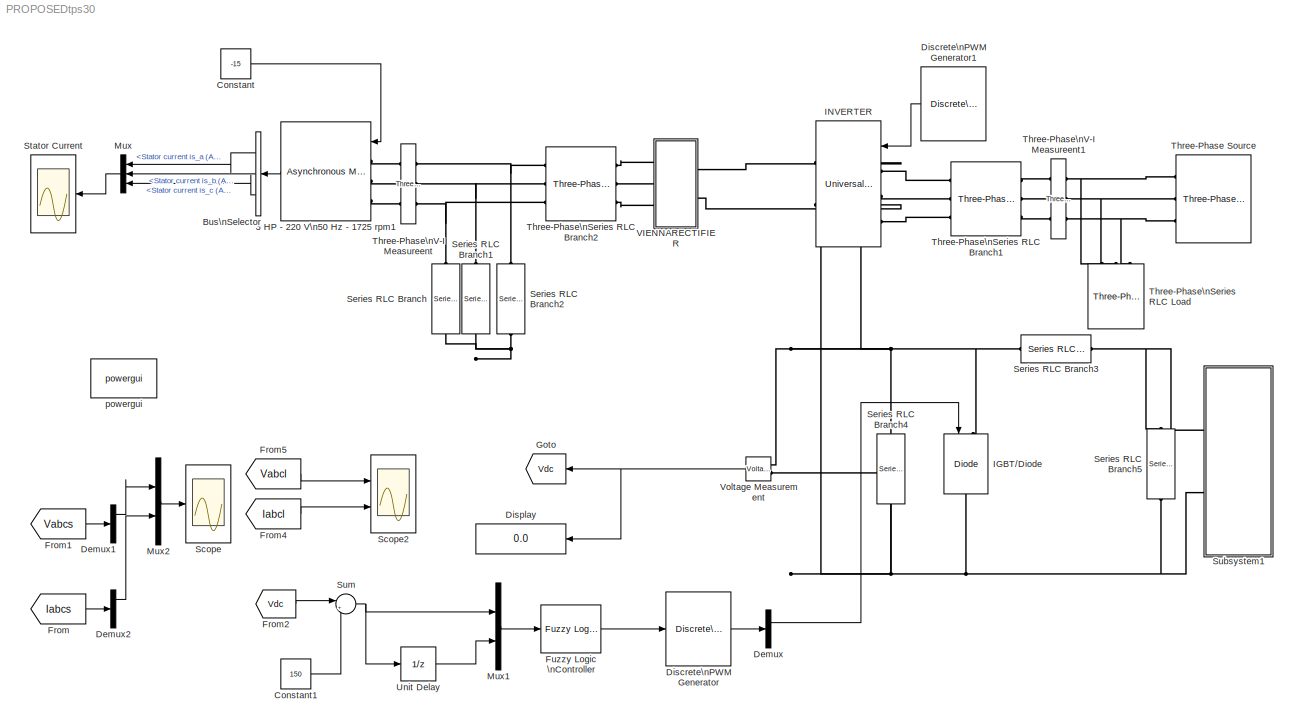
MODEL PROPOSEDtps30
KIND model
BLOCK [Reference] 3 HP - 220 V\n50 Hz - 1725 rpm1  REF=powerlib/Machines/Asynchronous Machine\nSI Units
  AttributesFormatString = \\n
  Cage1 = [ 0.022 0.226/377]
  Cage2 = [ 0.022 0.226/377]
  FunctionWithSeparateData = off
  GeneratePreprocessorConditionals = off
  InitialConditions = [ 1,0   0,0,0   0,0,0 ]
  IterativeModel = Forward Euler
  Lm = 69.31e-3
  LoadFlowParameters = 0
  Mechanical = [ 0.089 0 2 ]
  MechanicalLoad = Torque Tm
  NominalParameters = [ 10*746, 230, 50 ]
  Pmec = 0
  PolePairs = 2
  Ports = [1, 1, 0, 0, 0, 3]
  PresetModel = No
  RTWMemSecDataConstants = Inherit from model
  RTWMemSecDataInternal = Inherit from model
  RTWMemSecDataParameters = Inherit from model
  RTWMemSecFuncExecute = Inherit from model
  RTWMemSecFuncInitTerm = Inherit from model
  ReferenceFrame = Stationary
  Rotor = [ 0.816  2.0e-3 ]
  RotorType = Squirrel-cage
  SID = 227
  Saturation = [14.03593122, 27.81365428, 53.79336849, 72.68890987, 97.98006896, 148.6815601, 215.7428561, 302.9841135, 428.7778367 ; 230, 322, 414, 460, 506, 552, 598, 644, 690]
  ShowDetailedParameters = on
  ShowPortLabels = FromPortIcon
  SimulateSaturation = off
  SourceBlock = powerlib/Machines/Asynchronous Machine\nSI Units
  SourceType = Asynchronous Machine
  Stator = [ 0.435  2*2.0e-3 ]
  SystemSampleTime = -1
  TsBlock = -1
  TsPowergui = 0
  Units = SI
BLOCK [BusSelector] Bus\nSelector
  OutputSignals = Stator measurements.Stator current is_a (A),Stator measurements.Stator current is_b (A),Stator measurements.Stator current is_c (A)
  Ports = [1, 3]
  SID = 2
BLOCK [Constant] Constant
  SID = 229
  Value = -15
BLOCK [Constant] Constant1
  SID = 439
  Value = 150
BLOCK [Demux] Demux
  DisplayOption = bar
  Outputs = 2
  Ports = [1, 2]
  SID = 446
BLOCK [Demux] Demux1
  DisplayOption = bar
  Outputs = 3
  Ports = [1, 3]
  SID = 471
BLOCK [Demux] Demux2
  DisplayOption = bar
  Outputs = 3
  Ports = [1, 3]
  SID = 472
BLOCK [Reference] Discrete\nPWM Generator  REF=powerlib_extras/Discrete \nControl Blocks/Discrete\nPWM Generator
  Fc = 1080
  Freq = 60
  FunctionWithSeparateData = off
  GeneratePreprocessorConditionals = off
  GeneratorMode = 1-arm  bridge (2 pulses)
  Internal = off
  Phase = 0
  Ports = [1, 1]
  RTWMemSecDataConstants = Inherit from model
  RTWMemSecDataInternal = Inherit from model
  RTWMemSecDataParameters = Inherit from model
  RTWMemSecFuncExecute = Inherit from model
  RTWMemSecFuncInitTerm = Inherit from model
  SID = 445
  ShowPortLabels = FromPortIcon
  SourceBlock = powerlib_extras/Discrete \nControl Blocks/Discrete\nPWM Generator
  SourceType = Discrete PWM Generator
  SystemSampleTime = -1
  Ts = 5e-6
  mIndex = 0.4
BLOCK [Reference] Discrete\nPWM Generator1  REF=powerlib_extras/Discrete \nControl Blocks/Discrete\nPWM Generator
  Fc = 1080
  Freq = 60
  FunctionWithSeparateData = off
  GeneratePreprocessorConditionals = off
  GeneratorMode = 3-arm  bridge (6 pulses)
  Internal = on
  Phase = 0
  Ports = [0, 1]
  RTWMemSecDataConstants = Inherit from model
  RTWMemSecDataInternal = Inherit from model
  RTWMemSecDataParameters = Inherit from model
  RTWMemSecFuncExecute = Inherit from model
  RTWMemSecFuncInitTerm = Inherit from model
  SID = 473
  ShowPortLabels = FromPortIcon
  SourceBlock = powerlib_extras/Discrete \nControl Blocks/Discrete\nPWM Generator
  SourceType = Discrete PWM Generator
  SystemSampleTime = -1
  Ts = 5e-6
  mIndex = 0.4
BLOCK [Display] Display
  Decimation = 1
  Lockdown = off
  Ports = [1]
  SID = 454
BLOCK [From] From
  GotoTag = Iabcs
  SID = 38
  TagVisibility = global
BLOCK [From] From1
  GotoTag = Vabcs
  SID = 39
  TagVisibility = global
BLOCK [From] From2
  GotoTag = Vdc
  SID = 437
BLOCK [From] From4
  GotoTag = Iabcl
  SID = 59
  TagVisibility = global
BLOCK [From] From5
  GotoTag = Vabcl
  SID = 60
  TagVisibility = global
BLOCK [Reference] Fuzzy Logic \nController  REF=fuzblock/Fuzzy Logic \nController  (lib defined in mdl_858b3b3e7478)
  FunctionWithSeparateData = off
  GeneratePreprocessorConditionals = off
  Ports = [1, 1]
  RTWMemSecDataConstants = Inherit from model
  RTWMemSecDataInternal = Inherit from model
  RTWMemSecDataParameters = Inherit from model
  RTWMemSecFuncExecute = Inherit from model
  RTWMemSecFuncInitTerm = Inherit from model
  SID = 440
  ShowPortLabels = FromPortIcon
  SourceBlock = fuzblock/Fuzzy Logic \nController
  SourceType = FIS
  SystemSampleTime = -1
  fis = vienna_fuzzy
BLOCK [Goto] Goto
  GotoTag = Vdc
  SID = 89
  TagVisibility = local
BLOCK [Reference] IGBT//Diode  REF=powerlib/Power\nElectronics/IGBT//Diode
  Cs = inf
  FunctionWithSeparateData = off
  GeneratePreprocessorConditionals = off
  Measurements = off
  Ports = [1, 0, 0, 0, 0, 1, 1]
  RTWMemSecDataConstants = Inherit from model
  RTWMemSecDataInternal = Inherit from model
  RTWMemSecDataParameters = Inherit from model
  RTWMemSecFuncExecute = Inherit from model
  RTWMemSecFuncInitTerm = Inherit from model
  Ron = 1e-3
  Rs = 1e5
  SID = 405
  ShowPortLabels = FromPortIcon
  SourceBlock = powerlib/Power\nElectronics/IGBT//Diode
  SourceType = IGBT/Diode
  SystemSampleTime = -1
BLOCK [Reference] INVERTER  REF=powerlib/Power\nElectronics/Universal Bridge
  Arms = 3
  Device = IGBT / Diodes
  ForwardVoltage = 0
  ForwardVoltages = [  0  0  ]
  FunctionWithSeparateData = off
  GTOparameters = [ 10e-6 , 20e-6 ]
  GeneratePreprocessorConditionals = off
  IGBTparameters = [ 1e-6 , 2e-6 ]
  Lon = 0
  Measurements = None
  Measurements_2 = None
  Ports = [1, 0, 0, 0, 0, 3, 2]
  RTWMemSecDataConstants = Inherit from model
  RTWMemSecDataInternal = Inherit from model
  RTWMemSecDataParameters = Inherit from model
  RTWMemSecFuncExecute = Inherit from model
  RTWMemSecFuncInitTerm = Inherit from model
  Ron = 12
  SID = 86
  ShowPortLabels = FromPortIcon
  SnubberCapacitance = inf
  SnubberResistance = 1e5
  SourceBlock = powerlib/Power\nElectronics/Universal Bridge
  SourceType = Universal Bridge
  SystemSampleTime = -1
  converterType = Rectifier
BLOCK [Mux] Mux
  DisplayOption = bar
  Inputs = 3
  Ports = [3, 1]
  SID = 75
BLOCK [Mux] Mux1
  DisplayOption = bar
  Inputs = 2
  Ports = [2, 1]
  SID = 442
BLOCK [Mux] Mux2
  DisplayOption = bar
  Inputs = 2
  Ports = [2, 1]
  SID = 470
BLOCK [Scope] Scope
  DataFormat = StructureWithTime
  Floating = off
  NumInputPorts = 1
  Ports = [1]
  SID = 40
  SampleTime = 0
  SaveName = viennasource
  TimeRange = 0.25
  YMax = 1000
  YMin = -50
  ZoomMode = xonly
BLOCK [Scope] Scope2
  DataFormat = StructureWithTime
  Floating = off
  NumInputPorts = 2
  Ports = [2]
  SID = 61
  SampleTime = 0
  SaveName = viennaload
  SaveToWorkspace = on
  TimeRange = 1
  YMax = 150~5.5
  YMin = -150~-4
  ZoomMode = yonly
BLOCK [Reference] Series RLC Branch  REF=powerlib/Elements/Series RLC Branch
  BranchType = C
  Capacitance = 1e-3
  Inductance = 1e-3
  InitialCurrent = 0
  InitialVoltage = 0
  LConnTagsString = __new0
  LeftPortType = p1
  Measurements = None
  PhysicalDomain = powersysdomain
  Ports = [0, 0, 0, 0, 0, 1, 1]
  RConnTagsString = __new0
  Resistance = 1
  RightPortType = p1
  SID = 213
  SetiL0 = off
  Setx0 = off
  SourceBlock = powerlib/Elements/Series RLC Branch
  SourceType = Series RLC Branch
  SubClassName = unknown
BLOCK [Reference] Series RLC Branch1  REF=powerlib/Elements/Series RLC Branch
  BranchType = C
  Capacitance = 1e-3
  Inductance = 1e-3
  InitialCurrent = 0
  InitialVoltage = 0
  LConnTagsString = __new0
  LeftPortType = p1
  Measurements = None
  PhysicalDomain = powersysdomain
  Ports = [0, 0, 0, 0, 0, 1, 1]
  RConnTagsString = __new0
  Resistance = 1
  RightPortType = p1
  SID = 480
  SetiL0 = off
  Setx0 = off
  SourceBlock = powerlib/Elements/Series RLC Branch
  SourceType = Series RLC Branch
  SubClassName = unknown
BLOCK [Reference] Series RLC Branch2  REF=powerlib/Elements/Series RLC Branch
  BranchType = C
  Capacitance = 1e-3
  Inductance = 1e-3
  InitialCurrent = 0
  InitialVoltage = 0
  LConnTagsString = __new0
  LeftPortType = p1
  Measurements = None
  PhysicalDomain = powersysdomain
  Ports = [0, 0, 0, 0, 0, 1, 1]
  RConnTagsString = __new0
  Resistance = 1
  RightPortType = p1
  SID = 481
  SetiL0 = off
  Setx0 = off
  SourceBlock = powerlib/Elements/Series RLC Branch
  SourceType = Series RLC Branch
  SubClassName = unknown
BLOCK [Reference] Series RLC Branch3  REF=powerlib/Elements/Series RLC Branch
  BranchType = L
  Capacitance = 1e-6
  Inductance = 100e-3
  InitialCurrent = 0
  InitialVoltage = 0
  LConnTagsString = __new0
  LeftPortType = p1
  Measurements = None
  PhysicalDomain = powersysdomain
  Ports = [0, 0, 0, 0, 0, 1, 1]
  RConnTagsString = __new0
  Resistance = 1
  RightPortType = p1
  SID = 406
  SetiL0 = off
  Setx0 = off
  SourceBlock = powerlib/Elements/Series RLC Branch
  SourceType = Series RLC Branch
  SubClassName = unknown
BLOCK [Reference] Series RLC Branch4  REF=powerlib/Elements/Series RLC Branch
  BranchType = C
  Capacitance = 10e-6
  Inductance = 1e-3
  InitialCurrent = 0
  InitialVoltage = 0
  LConnTagsString = __new0
  LeftPortType = p1
  Measurements = None
  PhysicalDomain = powersysdomain
  Ports = [0, 0, 0, 0, 0, 1, 1]
  RConnTagsString = __new0
  Resistance = 1
  RightPortType = p1
  SID = 436
  SetiL0 = off
  Setx0 = off
  SourceBlock = powerlib/Elements/Series RLC Branch
  SourceType = Series RLC Branch
  SubClassName = unknown
BLOCK [Reference] Series RLC Branch5  REF=powerlib/Elements/Series RLC Branch
  BranchType = C
  Capacitance = 1e-6
  Inductance = 1e-3
  InitialCurrent = 0
  InitialVoltage = 0
  LConnTagsString = __new0
  LeftPortType = p1
  Measurements = None
  PhysicalDomain = powersysdomain
  Ports = [0, 0, 0, 0, 0, 1, 1]
  RConnTagsString = __new0
  Resistance = 1
  RightPortType = p1
  SID = 408
  SetiL0 = off
  Setx0 = off
  SourceBlock = powerlib/Elements/Series RLC Branch
  SourceType = Series RLC Branch
  SubClassName = unknown
BLOCK [Scope] Stator Current
  DataFormat = StructureWithTime
  Floating = off
  NumInputPorts = 1
  Ports = [1]
  SID = 73
  SampleTime = 0
  SaveName = ScopeData7
  TimeRange = 0.25
  YMax = 8e-010
  YMin = -8e-010
  ZoomMode = xonly
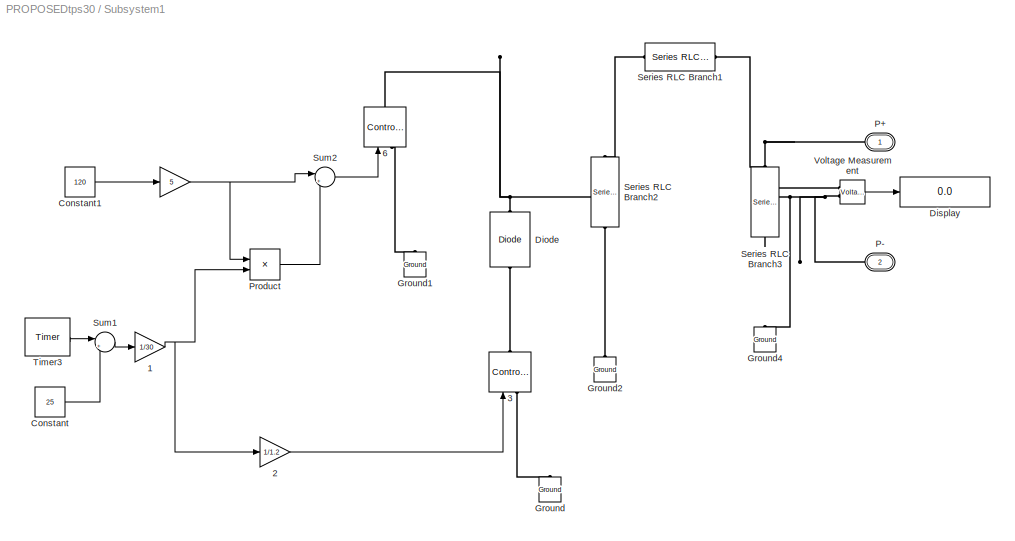
BLOCK [SubSystem] Subsystem1
  FunctionWithSeparateData = off
  MaskHideContents = off
  MinAlgLoopOccurrences = off
  Opaque = off
  Ports = [0, 0, 0, 0, 0, 2]
  PropExecContextOutsideSubsystem = off
  RTWSystemCode = Auto
  RequestExecContextInheritance = off
  SID = 409
BLOCK [Gain] Subsystem1/  
  Gain = 5
  OutDataTypeStr = Inherit: Inherit via back propagation
  ParamDataTypeStr = Inherit: Inherit via internal rule
  RndMeth = Zero
  SID = 410
  SaturateOnIntegerOverflow = off
BLOCK [Gain] Subsystem1/  1
  Gain = 1/30
  OutDataTypeStr = Inherit: Inherit via internal rule
  ParamDataTypeStr = Inherit: Inherit via internal rule
  RndMeth = Zero
  SID = 411
  SaturateOnIntegerOverflow = off
BLOCK [Gain] Subsystem1/  2
  Gain = 1/1.2
  OutDataTypeStr = Inherit: Inherit via back propagation
  ParamDataTypeStr = Inherit: Inherit via internal rule
  RndMeth = Zero
  SID = 412
  SaturateOnIntegerOverflow = off
BLOCK [Reference] Subsystem1/  3  REF=powerlib/Electrical\nSources/Controlled Current Source
  Amplitude = 0
  AttributesFormatString = \\n
  Description = source block
  Frequency = 0
  FunctionWithSeparateData = off
  GeneratePreprocessorConditionals = off
  Initialize = on
  Measurements = None
  Phase = 0
  Ports = [1, 0, 0, 0, 0, 1, 1]
  RTWMemSecDataConstants = Inherit from model
  RTWMemSecDataInternal = Inherit from model
  RTWMemSecDataParameters = Inherit from model
  RTWMemSecFuncExecute = Inherit from model
  RTWMemSecFuncInitTerm = Inherit from model
  SID = 413
  ShowPortLabels = FromPortIcon
  SourceBlock = powerlib/Electrical\nSources/Controlled Current Source
  SourceType = Controlled Current Source
  Source_Type = AC
  SystemSampleTime = -1
BLOCK [Reference] Subsystem1/  6  REF=powerlib/Electrical\nSources/Controlled Current Source
  Amplitude = 0
  AttributesFormatString = \\n
  Description = source block
  Frequency = 0
  FunctionWithSeparateData = off
  GeneratePreprocessorConditionals = off
  Initialize = on
  Measurements = None
  Phase = 0
  Ports = [1, 0, 0, 0, 0, 1, 1]
  RTWMemSecDataConstants = Inherit from model
  RTWMemSecDataInternal = Inherit from model
  RTWMemSecDataParameters = Inherit from model
  RTWMemSecFuncExecute = Inherit from model
  RTWMemSecFuncInitTerm = Inherit from model
  SID = 414
  ShowPortLabels = FromPortIcon
  SourceBlock = powerlib/Electrical\nSources/Controlled Current Source
  SourceType = Controlled Current Source
  Source_Type = AC
  SystemSampleTime = -1
BLOCK [Constant] Subsystem1/Constant
  SID = 415
  Value = 25
BLOCK [Constant] Subsystem1/Constant1
  SID = 416
  Value = 120
BLOCK [Reference] Subsystem1/Diode  REF=powerlib/Power\nElectronics/Diode
  Cs = 250e-9
  FunctionWithSeparateData = off
  GeneratePreprocessorConditionals = off
  IC = 0
  Lon = 0
  Measurements = off
  Ports = [0, 0, 0, 0, 0, 1, 1]
  RTWMemSecDataConstants = Inherit from model
  RTWMemSecDataInternal = Inherit from model
  RTWMemSecDataParameters = Inherit from model
  RTWMemSecFuncExecute = Inherit from model
  RTWMemSecFuncInitTerm = Inherit from model
  Ron = 0.001
  Rs = 500
  SID = 418
  ShowPortLabels = FromPortIcon
  SourceBlock = powerlib/Power\nElectronics/Diode
  SourceType = Diode
  SystemSampleTime = -1
  UseSnubber = off
  Vf = 0.8
BLOCK [Display] Subsystem1/Display
  Decimation = 1
  Lockdown = off
  Ports = [1]
  SID = 452
BLOCK [Reference] Subsystem1/Ground  REF=powerlib/Elements/Ground
  LConnTagsString = a
  LeftPortType = p1
  PhysicalDomain = powersysdomain
  Ports = [0, 0, 0, 0, 0, 1]
  RightPortType = p1
  SID = 421
  SourceBlock = powerlib/Elements/Ground
  SourceType = Ground
  SubClassName = unknown
BLOCK [Reference] Subsystem1/Ground1  REF=powerlib/Elements/Ground
  LConnTagsString = a
  LeftPortType = p1
  PhysicalDomain = powersysdomain
  Ports = [0, 0, 0, 0, 0, 1]
  RightPortType = p1
  SID = 422
  SourceBlock = powerlib/Elements/Ground
  SourceType = Ground
  SubClassName = unknown
BLOCK [Reference] Subsystem1/Ground2  REF=powerlib/Elements/Ground
  LConnTagsString = a
  LeftPortType = p1
  PhysicalDomain = powersysdomain
  Ports = [0, 0, 0, 0, 0, 1]
  RightPortType = p1
  SID = 423
  SourceBlock = powerlib/Elements/Ground
  SourceType = Ground
  SubClassName = unknown
BLOCK [Reference] Subsystem1/Ground4  REF=powerlib/Elements/Ground
  LConnTagsString = a
  LeftPortType = p1
  PhysicalDomain = powersysdomain
  Ports = [0, 0, 0, 0, 0, 1]
  RightPortType = p1
  SID = 424
  SourceBlock = powerlib/Elements/Ground
  SourceType = Ground
  SubClassName = unknown
BLOCK [PMIOPort] Subsystem1/P+
  Port = 1
  SID = 433
  Side = Left
  Tag = PMCPort
BLOCK [PMIOPort] Subsystem1/P-
  Port = 2
  SID = 434
  Side = Left
  Tag = PMCPort
BLOCK [Product] Subsystem1/Product
  InputSameDT = off
  Ports = [2, 1]
  SID = 425
BLOCK [Reference] Subsystem1/Series RLC Branch1  REF=powerlib/Elements/Series RLC Branch
  BranchType = R
  Capacitance = 1e-6
  Inductance = 1e-3
  InitialCurrent = 0
  InitialVoltage = 0
  LConnTagsString = __new0
  LeftPortType = p1
  Measurements = None
  PhysicalDomain = powersysdomain
  Ports = [0, 0, 0, 0, 0, 1, 1]
  RConnTagsString = __new0
  Resistance = 50
  RightPortType = p1
  SID = 426
  SetiL0 = off
  Setx0 = off
  SourceBlock = powerlib/Elements/Series RLC Branch
  SourceType = Series RLC Branch
  SubClassName = unknown
BLOCK [Reference] Subsystem1/Series RLC Branch2  REF=powerlib/Elements/Series RLC Branch
  BranchType = R
  Capacitance = 1e-6
  Inductance = 1e-3
  InitialCurrent = 0
  InitialVoltage = 0
  LConnTagsString = __new0
  LeftPortType = p1
  Measurements = None
  PhysicalDomain = powersysdomain
  Ports = [0, 0, 0, 0, 0, 1, 1]
  RConnTagsString = __new0
  Resistance = 0.11
  RightPortType = p1
  SID = 427
  SetiL0 = off
  Setx0 = off
  SourceBlock = powerlib/Elements/Series RLC Branch
  SourceType = Series RLC Branch
  SubClassName = unknown
BLOCK [Reference] Subsystem1/Series RLC Branch3  REF=powerlib/Elements/Series RLC Branch
  BranchType = R
  Capacitance = 1e-6
  Inductance = 1e-3
  InitialCurrent = 0
  InitialVoltage = 0
  LConnTagsString = __new0
  LeftPortType = p1
  Measurements = None
  PhysicalDomain = powersysdomain
  Ports = [0, 0, 0, 0, 0, 1, 1]
  RConnTagsString = __new0
  Resistance = 10
  RightPortType = p1
  SID = 428
  SetiL0 = off
  Setx0 = off
  SourceBlock = powerlib/Elements/Series RLC Branch
  SourceType = Series RLC Branch
  SubClassName = unknown
BLOCK [Sum] Subsystem1/Sum1
  IconShape = round
  InputSameDT = off
  Inputs = |+-
  OutDataTypeStr = Inherit: Inherit via internal rule
  Ports = [2, 1]
  SID = 429
BLOCK [Sum] Subsystem1/Sum2
  IconShape = round
  InputSameDT = off
  Inputs = |++
  OutDataTypeStr = Inherit: Inherit via internal rule
  Ports = [2, 1]
  SID = 430
BLOCK [Reference] Subsystem1/Timer3  REF=powerlib_extras/Control \nBlocks/Timer
  FunctionWithSeparateData = off
  GeneratePreprocessorConditionals = off
  Ports = [0, 1]
  RTWMemSecDataConstants = Inherit from model
  RTWMemSecDataInternal = Inherit from model
  RTWMemSecDataParameters = Inherit from model
  RTWMemSecFuncExecute = Inherit from model
  RTWMemSecFuncInitTerm = Inherit from model
  SID = 431
  ShowPortLabels = FromPortIcon
  SourceBlock = powerlib_extras/Control \nBlocks/Timer
  SourceType = Timer
  SystemSampleTime = -1
  e = 200
  t = 0.001
BLOCK [Reference] Subsystem1/Voltage Measurement  REF=powerlib/Measurements/Voltage Measurement
  FunctionWithSeparateData = off
  GeneratePreprocessorConditionals = off
  OutputType = Complex
  PSBequivalent = 0
  PhasorSimulation = off
  Ports = [0, 1, 0, 0, 0, 2]
  RTWMemSecDataConstants = Inherit from model
  RTWMemSecDataInternal = Inherit from model
  RTWMemSecDataParameters = Inherit from model
  RTWMemSecFuncExecute = Inherit from model
  RTWMemSecFuncInitTerm = Inherit from model
  SID = 432
  ShowPortLabels = FromPortIcon
  SourceBlock = powerlib/Measurements/Voltage Measurement
  SourceType = Voltage Measurement
  SystemSampleTime = -1
BLOCK [Sum] Sum
  IconShape = round
  InputSameDT = off
  Inputs = |+-
  OutDataTypeStr = Inherit: Inherit via internal rule
  Ports = [2, 1]
  SID = 438
  SaturateOnIntegerOverflow = off
BLOCK [Reference] Three-Phase Source  REF=powerlib/Electrical\nSources/Three-Phase Source
  BaseVoltage = 230*sqrt(3/2)
  BusType = swing
  Frequency = 50
  FunctionWithSeparateData = off
  GeneratePreprocessorConditionals = off
  Inductance = 16.58e-3
  InternalConnection = Yg
  PhaseAngle = 0
  Ports = [0, 0, 0, 0, 0, 0, 3]
  Pref = 0
  Qmax = inf
  Qmin = -inf
  Qref = 0
  RTWMemSecDataConstants = Inherit from model
  RTWMemSecDataInternal = Inherit from model
  RTWMemSecDataParameters = Inherit from model
  RTWMemSecFuncExecute = Inherit from model
  RTWMemSecFuncInitTerm = Inherit from model
  Resistance = 0.8929
  SID = 474
  ShortCircuitLevel = 25e3
  ShowPortLabels = FromPortIcon
  SourceBlock = powerlib/Electrical\nSources/Three-Phase Source
  SourceType = Three-Phase Source
  SpecifyImpedance = on
  SystemSampleTime = -1
  Voltage = 230*sqrt(3/2)
  XRratio = 7
BLOCK [Reference] Three-Phase\nSeries RLC Branch1  REF=powerlib/Elements/Three-Phase\nSeries RLC Branch
  AttributesFormatString = \\n
  BranchType = RL
  Capacitance = 1e-6
  Inductance = 0.1
  LConnTagsString = A|B|C
  LeftPortType = p1
  Measurements = None
  PhysicalDomain = powersysdomain
  Ports = [0, 0, 0, 0, 0, 3, 3]
  RConnTagsString = A|B|C
  Resistance = 0.1
  RightPortType = p1
  SID = 139
  SourceBlock = powerlib/Elements/Three-Phase\nSeries RLC Branch
  SourceType = Three-Phase Series RLC Branch
  SubClassName = unknown
BLOCK [Reference] Three-Phase\nSeries RLC Branch2  REF=powerlib/Elements/Three-Phase\nSeries RLC Branch
  AttributesFormatString = \\n
  BranchType = RL
  Capacitance = 1e-6
  Inductance = 0.1
  LConnTagsString = A|B|C
  LeftPortType = p1
  Measurements = None
  PhysicalDomain = powersysdomain
  Ports = [0, 0, 0, 0, 0, 3, 3]
  RConnTagsString = A|B|C
  Resistance = 100
  RightPortType = p1
  SID = 464
  SourceBlock = powerlib/Elements/Three-Phase\nSeries RLC Branch
  SourceType = Three-Phase Series RLC Branch
  SubClassName = unknown
BLOCK [Reference] Three-Phase\nSeries RLC Load  REF=powerlib/Elements/Three-Phase\nSeries RLC Load
  ActivePower = 25e3
  AttributesFormatString = \\n
  CapacitivePower = 0
  Configuration = Y (grounded)
  InductivePower = 0
  LConnTagsString = A|B|C
  LeftPortType = p1
  LoadType = constant Z
  Measurements = None
  NominalFrequency = 50
  NominalVoltage = 230*sqrt(3/2)
  PhysicalDomain = powersysdomain
  Ports = [0, 0, 0, 0, 0, 3]
  RightPortType = p1
  SID = 475
  SourceBlock = powerlib/Elements/Three-Phase\nSeries RLC Load
  SourceType = Three-Phase Series RLC Load
  SubClassName = unknown
BLOCK [Reference] Three-Phase\nV-I Measureent  REF=powerlib/Measurements/Three-Phase\nV-I Measurement
  CurrentMeasurement = yes
  FunctionWithSeparateData = off
  GeneratePreprocessorConditionals = off
  Ipu = off
  LabelI = Iabcs
  LabelV = Vabcs
  OutputType = Complex
  PSBequivalent = 0
  Pbase = 100e6
  PhasorSimulation = off
  Ports = [0, 0, 0, 0, 0, 3, 3]
  RTWMemSecDataConstants = Inherit from model
  RTWMemSecDataInternal = Inherit from model
  RTWMemSecDataParameters = Inherit from model
  RTWMemSecFuncExecute = Inherit from model
  RTWMemSecFuncInitTerm = Inherit from model
  SID = 62
  SetLabelI = on
  SetLabelV = on
  ShowPortLabels = FromPortIcon
  SourceBlock = powerlib/Measurements/Three-Phase\nV-I Measurement
  SourceType = Three-Phase VI Measurement
  SystemSampleTime = -1
  Vbase = 500e3
  VoltageMeasurement = phase-to-ground
  Vpu = off
  VpuLL = off
BLOCK [Reference] Three-Phase\nV-I Measureent1  REF=powerlib/Measurements/Three-Phase\nV-I Measurement
  CurrentMeasurement = yes
  FunctionWithSeparateData = off
  GeneratePreprocessorConditionals = off
  Ipu = off
  LabelI = Iabcl
  LabelV = Vabcl
  OutputType = Complex
  PSBequivalent = 0
  Pbase = 100e6
  PhasorSimulation = off
  Ports = [0, 0, 0, 0, 0, 3, 3]
  RTWMemSecDataConstants = Inherit from model
  RTWMemSecDataInternal = Inherit from model
  RTWMemSecDataParameters = Inherit from model
  RTWMemSecFuncExecute = Inherit from model
  RTWMemSecFuncInitTerm = Inherit from model
  SID = 63
  SetLabelI = on
  SetLabelV = on
  ShowPortLabels = FromPortIcon
  SourceBlock = powerlib/Measurements/Three-Phase\nV-I Measurement
  SourceType = Three-Phase VI Measurement
  SystemSampleTime = -1
  Vbase = 500e3
  VoltageMeasurement = phase-to-ground
  Vpu = off
  VpuLL = off
BLOCK [UnitDelay] Unit Delay
  InputProcessing = Elements as channels (sample based)
  SID = 441
  SampleTime = -1
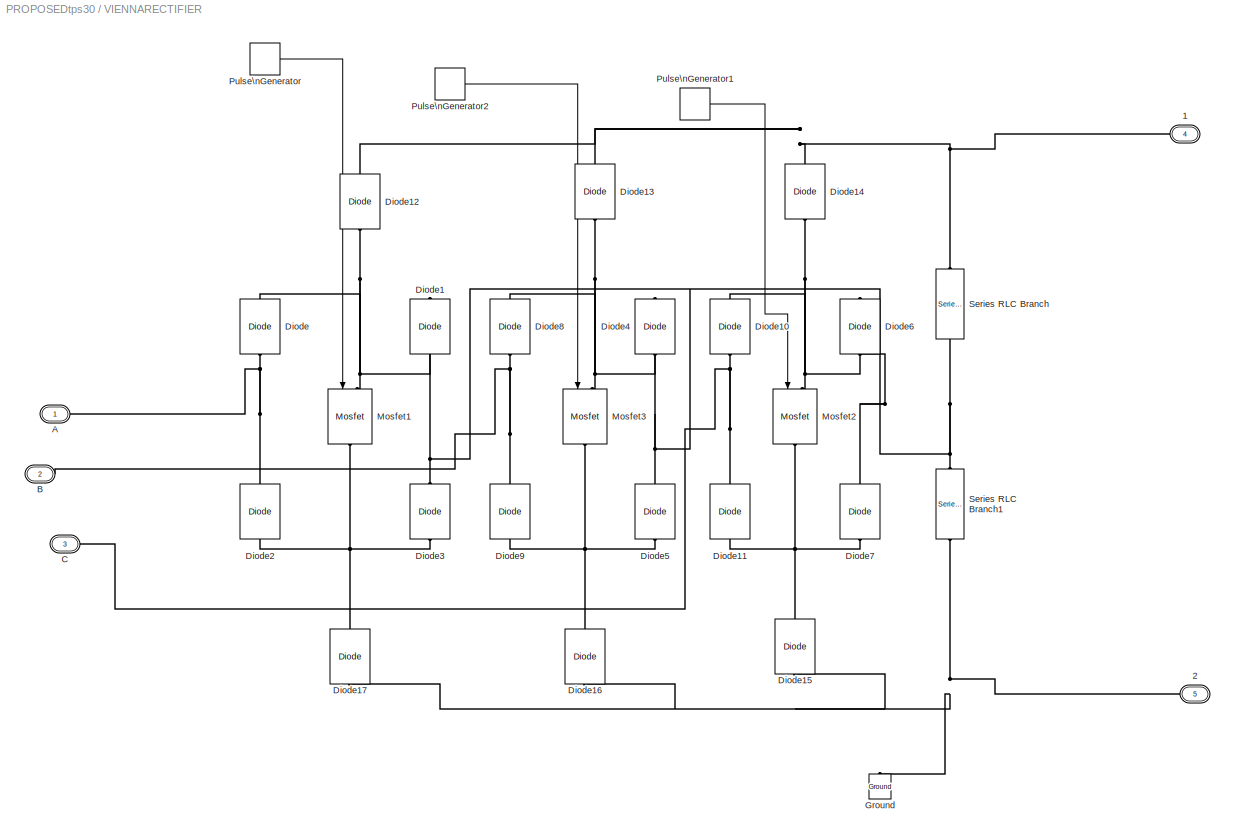
BLOCK [SubSystem] VIENNARECTIFIER
  FunctionWithSeparateData = off
  MaskHideContents = off
  MinAlgLoopOccurrences = off
  Opaque = off
  Ports = [0, 0, 0, 0, 0, 3, 2]
  PropExecContextOutsideSubsystem = off
  RTWSystemCode = Auto
  RequestExecContextInheritance = off
  SID = 367
BLOCK [PMIOPort] VIENNARECTIFIER/1
  Port = 4
  SID = 401
  Side = Right
  Tag = PMCPort
BLOCK [PMIOPort] VIENNARECTIFIER/2
  Port = 5
  SID = 402
  Side = Right
  Tag = PMCPort
BLOCK [PMIOPort] VIENNARECTIFIER/A
  Port = 1
  SID = 398
  Side = Left
  Tag = PMCPort
BLOCK [PMIOPort] VIENNARECTIFIER/B
  Port = 2
  SID = 399
  Side = Left
  Tag = PMCPort
BLOCK [PMIOPort] VIENNARECTIFIER/C
  Port = 3
  SID = 400
  Side = Left
  Tag = PMCPort
BLOCK [Reference] VIENNARECTIFIER/Diode  REF=powerlib/Power\nElectronics/Diode
  Cs = 250e-9
  FunctionWithSeparateData = off
  GeneratePreprocessorConditionals = off
  IC = 0
  Lon = 0
  Measurements = off
  Ports = [0, 0, 0, 0, 0, 1, 1]
  RTWMemSecDataConstants = Inherit from model
  RTWMemSecDataInternal = Inherit from model
  RTWMemSecDataParameters = Inherit from model
  RTWMemSecFuncExecute = Inherit from model
  RTWMemSecFuncInitTerm = Inherit from model
  Ron = 0.001
  Rs = 500
  SID = 368
  ShowPortLabels = FromPortIcon
  SourceBlock = powerlib/Power\nElectronics/Diode
  SourceType = Diode
  SystemSampleTime = -1
  UseSnubber = off
  Vf = 0.8
BLOCK [Reference] VIENNARECTIFIER/Diode1  REF=powerlib/Power\nElectronics/Diode
  Cs = 250e-9
  FunctionWithSeparateData = off
  GeneratePreprocessorConditionals = off
  IC = 0
  Lon = 0
  Measurements = off
  Ports = [0, 0, 0, 0, 0, 1, 1]
  RTWMemSecDataConstants = Inherit from model
  RTWMemSecDataInternal = Inherit from model
  RTWMemSecDataParameters = Inherit from model
  RTWMemSecFuncExecute = Inherit from model
  RTWMemSecFuncInitTerm = Inherit from model
  Ron = 0.001
  Rs = 500
  SID = 369
  ShowPortLabels = FromPortIcon
  SourceBlock = powerlib/Power\nElectronics/Diode
  SourceType = Diode
  SystemSampleTime = -1
  UseSnubber = off
  Vf = 0.8
BLOCK [Reference] VIENNARECTIFIER/Diode10  REF=powerlib/Power\nElectronics/Diode
  Cs = 250e-9
  FunctionWithSeparateData = off
  GeneratePreprocessorConditionals = off
  IC = 0
  Lon = 0
  Measurements = off
  Ports = [0, 0, 0, 0, 0, 1, 1]
  RTWMemSecDataConstants = Inherit from model
  RTWMemSecDataInternal = Inherit from model
  RTWMemSecDataParameters = Inherit from model
  RTWMemSecFuncExecute = Inherit from model
  RTWMemSecFuncInitTerm = Inherit from model
  Ron = 0.001
  Rs = 500
  SID = 370
  ShowPortLabels = FromPortIcon
  SourceBlock = powerlib/Power\nElectronics/Diode
  SourceType = Diode
  SystemSampleTime = -1
  UseSnubber = off
  Vf = 0.8
BLOCK [Reference] VIENNARECTIFIER/Diode11  REF=powerlib/Power\nElectronics/Diode
  Cs = 250e-9
  FunctionWithSeparateData = off
  GeneratePreprocessorConditionals = off
  IC = 0
  Lon = 0
  Measurements = off
  Ports = [0, 0, 0, 0, 0, 1, 1]
  RTWMemSecDataConstants = Inherit from model
  RTWMemSecDataInternal = Inherit from model
  RTWMemSecDataParameters = Inherit from model
  RTWMemSecFuncExecute = Inherit from model
  RTWMemSecFuncInitTerm = Inherit from model
  Ron = 0.001
  Rs = 500
  SID = 371
  ShowPortLabels = FromPortIcon
  SourceBlock = powerlib/Power\nElectronics/Diode
  SourceType = Diode
  SystemSampleTime = -1
  UseSnubber = off
  Vf = 0.8
BLOCK [Reference] VIENNARECTIFIER/Diode12  REF=powerlib/Power\nElectronics/Diode
  Cs = 250e-9
  FunctionWithSeparateData = off
  GeneratePreprocessorConditionals = off
  IC = 0
  Lon = 0
  Measurements = off
  Ports = [0, 0, 0, 0, 0, 1, 1]
  RTWMemSecDataConstants = Inherit from model
  RTWMemSecDataInternal = Inherit from model
  RTWMemSecDataParameters = Inherit from model
  RTWMemSecFuncExecute = Inherit from model
  RTWMemSecFuncInitTerm = Inherit from model
  Ron = 0.001
  Rs = 500
  SID = 372
  ShowPortLabels = FromPortIcon
  SourceBlock = powerlib/Power\nElectronics/Diode
  SourceType = Diode
  SystemSampleTime = -1
  UseSnubber = off
  Vf = 0.8
BLOCK [Reference] VIENNARECTIFIER/Diode13  REF=powerlib/Power\nElectronics/Diode
  Cs = 250e-9
  FunctionWithSeparateData = off
  GeneratePreprocessorConditionals = off
  IC = 0
  Lon = 0
  Measurements = off
  Ports = [0, 0, 0, 0, 0, 1, 1]
  RTWMemSecDataConstants = Inherit from model
  RTWMemSecDataInternal = Inherit from model
  RTWMemSecDataParameters = Inherit from model
  RTWMemSecFuncExecute = Inherit from model
  RTWMemSecFuncInitTerm = Inherit from model
  Ron = 0.001
  Rs = 500
  SID = 373
  ShowPortLabels = FromPortIcon
  SourceBlock = powerlib/Power\nElectronics/Diode
  SourceType = Diode
  SystemSampleTime = -1
  UseSnubber = off
  Vf = 0.8
BLOCK [Reference] VIENNARECTIFIER/Diode14  REF=powerlib/Power\nElectronics/Diode
  Cs = 250e-9
  FunctionWithSeparateData = off
  GeneratePreprocessorConditionals = off
  IC = 0
  Lon = 0
  Measurements = off
  Ports = [0, 0, 0, 0, 0, 1, 1]
  RTWMemSecDataConstants = Inherit from model
  RTWMemSecDataInternal = Inherit from model
  RTWMemSecDataParameters = Inherit from model
  RTWMemSecFuncExecute = Inherit from model
  RTWMemSecFuncInitTerm = Inherit from model
  Ron = 0.001
  Rs = 500
  SID = 374
  ShowPortLabels = FromPortIcon
  SourceBlock = powerlib/Power\nElectronics/Diode
  SourceType = Diode
  SystemSampleTime = -1
  UseSnubber = off
  Vf = 0.8
BLOCK [Reference] VIENNARECTIFIER/Diode15  REF=powerlib/Power\nElectronics/Diode
  Cs = 250e-9
  FunctionWithSeparateData = off
  GeneratePreprocessorConditionals = off
  IC = 0
  Lon = 0
  Measurements = off
  Ports = [0, 0, 0, 0, 0, 1, 1]
  RTWMemSecDataConstants = Inherit from model
  RTWMemSecDataInternal = Inherit from model
  RTWMemSecDataParameters = Inherit from model
  RTWMemSecFuncExecute = Inherit from model
  RTWMemSecFuncInitTerm = Inherit from model
  Ron = 0.001
  Rs = 500
  SID = 375
  ShowPortLabels = FromPortIcon
  SourceBlock = powerlib/Power\nElectronics/Diode
  SourceType = Diode
  SystemSampleTime = -1
  UseSnubber = off
  Vf = 0.8
BLOCK [Reference] VIENNARECTIFIER/Diode16  REF=powerlib/Power\nElectronics/Diode
  Cs = 250e-9
  FunctionWithSeparateData = off
  GeneratePreprocessorConditionals = off
  IC = 0
  Lon = 0
  Measurements = off
  Ports = [0, 0, 0, 0, 0, 1, 1]
  RTWMemSecDataConstants = Inherit from model
  RTWMemSecDataInternal = Inherit from model
  RTWMemSecDataParameters = Inherit from model
  RTWMemSecFuncExecute = Inherit from model
  RTWMemSecFuncInitTerm = Inherit from model
  Ron = 0.001
  Rs = 500
  SID = 376
  ShowPortLabels = FromPortIcon
  SourceBlock = powerlib/Power\nElectronics/Diode
  SourceType = Diode
  SystemSampleTime = -1
  UseSnubber = off
  Vf = 0.8
BLOCK [Reference] VIENNARECTIFIER/Diode17  REF=powerlib/Power\nElectronics/Diode
  Cs = 250e-9
  FunctionWithSeparateData = off
  GeneratePreprocessorConditionals = off
  IC = 0
  Lon = 0
  Measurements = off
  Ports = [0, 0, 0, 0, 0, 1, 1]
  RTWMemSecDataConstants = Inherit from model
  RTWMemSecDataInternal = Inherit from model
  RTWMemSecDataParameters = Inherit from model
  RTWMemSecFuncExecute = Inherit from model
  RTWMemSecFuncInitTerm = Inherit from model
  Ron = 0.001
  Rs = 500
  SID = 377
  ShowPortLabels = FromPortIcon
  SourceBlock = powerlib/Power\nElectronics/Diode
  SourceType = Diode
  SystemSampleTime = -1
  UseSnubber = off
  Vf = 0.8
BLOCK [Reference] VIENNARECTIFIER/Diode2  REF=powerlib/Power\nElectronics/Diode
  Cs = 250e-9
  FunctionWithSeparateData = off
  GeneratePreprocessorConditionals = off
  IC = 0
  Lon = 0
  Measurements = off
  Ports = [0, 0, 0, 0, 0, 1, 1]
  RTWMemSecDataConstants = Inherit from model
  RTWMemSecDataInternal = Inherit from model
  RTWMemSecDataParameters = Inherit from model
  RTWMemSecFuncExecute = Inherit from model
  RTWMemSecFuncInitTerm = Inherit from model
  Ron = 0.001
  Rs = 500
  SID = 378
  ShowPortLabels = FromPortIcon
  SourceBlock = powerlib/Power\nElectronics/Diode
  SourceType = Diode
  SystemSampleTime = -1
  UseSnubber = off
  Vf = 0.8
BLOCK [Reference] VIENNARECTIFIER/Diode3  REF=powerlib/Power\nElectronics/Diode
  Cs = 250e-9
  FunctionWithSeparateData = off
  GeneratePreprocessorConditionals = off
  IC = 0
  Lon = 0
  Measurements = off
  Ports = [0, 0, 0, 0, 0, 1, 1]
  RTWMemSecDataConstants = Inherit from model
  RTWMemSecDataInternal = Inherit from model
  RTWMemSecDataParameters = Inherit from model
  RTWMemSecFuncExecute = Inherit from model
  RTWMemSecFuncInitTerm = Inherit from model
  Ron = 0.001
  Rs = 500
  SID = 379
  ShowPortLabels = FromPortIcon
  SourceBlock = powerlib/Power\nElectronics/Diode
  SourceType = Diode
  SystemSampleTime = -1
  UseSnubber = off
  Vf = 0.8
BLOCK [Reference] VIENNARECTIFIER/Diode4  REF=powerlib/Power\nElectronics/Diode
  Cs = 250e-9
  FunctionWithSeparateData = off
  GeneratePreprocessorConditionals = off
  IC = 0
  Lon = 0
  Measurements = off
  Ports = [0, 0, 0, 0, 0, 1, 1]
  RTWMemSecDataConstants = Inherit from model
  RTWMemSecDataInternal = Inherit from model
  RTWMemSecDataParameters = Inherit from model
  RTWMemSecFuncExecute = Inherit from model
  RTWMemSecFuncInitTerm = Inherit from model
  Ron = 0.001
  Rs = 500
  SID = 380
  ShowPortLabels = FromPortIcon
  SourceBlock = powerlib/Power\nElectronics/Diode
  SourceType = Diode
  SystemSampleTime = -1
  UseSnubber = off
  Vf = 0.8
BLOCK [Reference] VIENNARECTIFIER/Diode5  REF=powerlib/Power\nElectronics/Diode
  Cs = 250e-9
  FunctionWithSeparateData = off
  GeneratePreprocessorConditionals = off
  IC = 0
  Lon = 0
  Measurements = off
  Ports = [0, 0, 0, 0, 0, 1, 1]
  RTWMemSecDataConstants = Inherit from model
  RTWMemSecDataInternal = Inherit from model
  RTWMemSecDataParameters = Inherit from model
  RTWMemSecFuncExecute = Inherit from model
  RTWMemSecFuncInitTerm = Inherit from model
  Ron = 0.001
  Rs = 500
  SID = 381
  ShowPortLabels = FromPortIcon
  SourceBlock = powerlib/Power\nElectronics/Diode
  SourceType = Diode
  SystemSampleTime = -1
  UseSnubber = off
  Vf = 0.8
BLOCK [Reference] VIENNARECTIFIER/Diode6  REF=powerlib/Power\nElectronics/Diode
  Cs = 250e-9
  FunctionWithSeparateData = off
  GeneratePreprocessorConditionals = off
  IC = 0
  Lon = 0
  Measurements = off
  Ports = [0, 0, 0, 0, 0, 1, 1]
  RTWMemSecDataConstants = Inherit from model
  RTWMemSecDataInternal = Inherit from model
  RTWMemSecDataParameters = Inherit from model
  RTWMemSecFuncExecute = Inherit from model
  RTWMemSecFuncInitTerm = Inherit from model
  Ron = 0.001
  Rs = 500
  SID = 382
  ShowPortLabels = FromPortIcon
  SourceBlock = powerlib/Power\nElectronics/Diode
  SourceType = Diode
  SystemSampleTime = -1
  UseSnubber = off
  Vf = 0.8
BLOCK [Reference] VIENNARECTIFIER/Diode7  REF=powerlib/Power\nElectronics/Diode
  Cs = 250e-9
  FunctionWithSeparateData = off
  GeneratePreprocessorConditionals = off
  IC = 0
  Lon = 0
  Measurements = off
  Ports = [0, 0, 0, 0, 0, 1, 1]
  RTWMemSecDataConstants = Inherit from model
  RTWMemSecDataInternal = Inherit from model
  RTWMemSecDataParameters = Inherit from model
  RTWMemSecFuncExecute = Inherit from model
  RTWMemSecFuncInitTerm = Inherit from model
  Ron = 0.001
  Rs = 500
  SID = 383
  ShowPortLabels = FromPortIcon
  SourceBlock = powerlib/Power\nElectronics/Diode
  SourceType = Diode
  SystemSampleTime = -1
  UseSnubber = off
  Vf = 0.8
BLOCK [Reference] VIENNARECTIFIER/Diode8  REF=powerlib/Power\nElectronics/Diode
  Cs = 250e-9
  FunctionWithSeparateData = off
  GeneratePreprocessorConditionals = off
  IC = 0
  Lon = 0
  Measurements = off
  Ports = [0, 0, 0, 0, 0, 1, 1]
  RTWMemSecDataConstants = Inherit from model
  RTWMemSecDataInternal = Inherit from model
  RTWMemSecDataParameters = Inherit from model
  RTWMemSecFuncExecute = Inherit from model
  RTWMemSecFuncInitTerm = Inherit from model
  Ron = 0.001
  Rs = 500
  SID = 384
  ShowPortLabels = FromPortIcon
  SourceBlock = powerlib/Power\nElectronics/Diode
  SourceType = Diode
  SystemSampleTime = -1
  UseSnubber = off
  Vf = 0.8
BLOCK [Reference] VIENNARECTIFIER/Diode9  REF=powerlib/Power\nElectronics/Diode
  Cs = 250e-9
  FunctionWithSeparateData = off
  GeneratePreprocessorConditionals = off
  IC = 0
  Lon = 0
  Measurements = off
  Ports = [0, 0, 0, 0, 0, 1, 1]
  RTWMemSecDataConstants = Inherit from model
  RTWMemSecDataInternal = Inherit from model
  RTWMemSecDataParameters = Inherit from model
  RTWMemSecFuncExecute = Inherit from model
  RTWMemSecFuncInitTerm = Inherit from model
  Ron = 0.001
  Rs = 500
  SID = 385
  ShowPortLabels = FromPortIcon
  SourceBlock = powerlib/Power\nElectronics/Diode
  SourceType = Diode
  SystemSampleTime = -1
  UseSnubber = off
  Vf = 0.8
BLOCK [Reference] VIENNARECTIFIER/Ground  REF=powerlib/Elements/Ground
  LConnTagsString = a
  LeftPortType = p1
  PhysicalDomain = powersysdomain
  Ports = [0, 0, 0, 0, 0, 1]
  RightPortType = p1
  SID = 386
  SourceBlock = powerlib/Elements/Ground
  SourceType = Ground
  SubClassName = unknown
BLOCK [Reference] VIENNARECTIFIER/Mosfet1  REF=powerlib/Power\nElectronics/Mosfet
  Cs = inf
  FunctionWithSeparateData = off
  GeneratePreprocessorConditionals = off
  IC = 0
  Lon = 0
  Measurements = off
  Ports = [1, 0, 0, 0, 0, 1, 1]
  RTWMemSecDataConstants = Inherit from model
  RTWMemSecDataInternal = Inherit from model
  RTWMemSecDataParameters = Inherit from model
  RTWMemSecFuncExecute = Inherit from model
  RTWMemSecFuncInitTerm = Inherit from model
  Rd = 0.01
  Ron = 500
  Rs = 100
  SID = 465
  ShowPortLabels = FromPortIcon
  SourceBlock = powerlib/Power\nElectronics/Mosfet
  SourceType = Mosfet
  SystemSampleTime = -1
  Vfd = 0
BLOCK [Reference] VIENNARECTIFIER/Mosfet2  REF=powerlib/Power\nElectronics/Mosfet
  Cs = inf
  FunctionWithSeparateData = off
  GeneratePreprocessorConditionals = off
  IC = 0
  Lon = 0
  Measurements = off
  Ports = [1, 0, 0, 0, 0, 1, 1]
  RTWMemSecDataConstants = Inherit from model
  RTWMemSecDataInternal = Inherit from model
  RTWMemSecDataParameters = Inherit from model
  RTWMemSecFuncExecute = Inherit from model
  RTWMemSecFuncInitTerm = Inherit from model
  Rd = 0.01
  Ron = 500
  Rs = 100
  SID = 468
  ShowPortLabels = FromPortIcon
  SourceBlock = powerlib/Power\nElectronics/Mosfet
  SourceType = Mosfet
  SystemSampleTime = -1
  Vfd = 0
BLOCK [Reference] VIENNARECTIFIER/Mosfet3  REF=powerlib/Power\nElectronics/Mosfet
  Cs = inf
  FunctionWithSeparateData = off
  GeneratePreprocessorConditionals = off
  IC = 0
  Lon = 0
  Measurements = off
  Ports = [1, 0, 0, 0, 0, 1, 1]
  RTWMemSecDataConstants = Inherit from model
  RTWMemSecDataInternal = Inherit from model
  RTWMemSecDataParameters = Inherit from model
  RTWMemSecFuncExecute = Inherit from model
  RTWMemSecFuncInitTerm = Inherit from model
  Rd = 0.01
  Ron = 500
  Rs = 100
  SID = 469
  ShowPortLabels = FromPortIcon
  SourceBlock = powerlib/Power\nElectronics/Mosfet
  SourceType = Mosfet
  SystemSampleTime = -1
  Vfd = 0
BLOCK [DiscretePulseGenerator] VIENNARECTIFIER/Pulse\nGenerator
  Period = 0.05
  PhaseDelay = 0.0017
  Ports = [0, 1]
  PulseType = Time based
  PulseWidth = 75
  SID = 390
BLOCK [DiscretePulseGenerator] VIENNARECTIFIER/Pulse\nGenerator1
  Period = 0.05
  PhaseDelay = 0.0017
  Ports = [0, 1]
  PulseType = Time based
  PulseWidth = 75
  SID = 391
BLOCK [DiscretePulseGenerator] VIENNARECTIFIER/Pulse\nGenerator2
  Period = 0.05
  PhaseDelay = 0.0017
  Ports = [0, 1]
  PulseType = Time based
  PulseWidth = 75
  SID = 392
BLOCK [Reference] VIENNARECTIFIER/Series RLC Branch  REF=powerlib/Elements/Series RLC Branch
  BranchType = C
  Capacitance = 100e-6
  Inductance = 1e-3
  InitialCurrent = 0
  InitialVoltage = 0
  LConnTagsString = __new0
  LeftPortType = p1
  Measurements = None
  PhysicalDomain = powersysdomain
  Ports = [0, 0, 0, 0, 0, 1, 1]
  RConnTagsString = __new0
  Resistance = 1
  RightPortType = p1
  SID = 395
  SetiL0 = off
  Setx0 = off
  SourceBlock = powerlib/Elements/Series RLC Branch
  SourceType = Series RLC Branch
  SubClassName = unknown
BLOCK [Reference] VIENNARECTIFIER/Series RLC Branch1  REF=powerlib/Elements/Series RLC Branch
  BranchType = C
  Capacitance = 100e-6
  Inductance = 1e-3
  InitialCurrent = 0
  InitialVoltage = 0
  LConnTagsString = __new0
  LeftPortType = p1
  Measurements = None
  PhysicalDomain = powersysdomain
  Ports = [0, 0, 0, 0, 0, 1, 1]
  RConnTagsString = __new0
  Resistance = 1
  RightPortType = p1
  SID = 396
  SetiL0 = off
  Setx0 = off
  SourceBlock = powerlib/Elements/Series RLC Branch
  SourceType = Series RLC Branch
  SubClassName = unknown
BLOCK [Reference] Voltage Measurement  REF=powerlib/Measurements/Voltage Measurement
  FunctionWithSeparateData = off
  GeneratePreprocessorConditionals = off
  OutputType = Complex
  PSBequivalent = 0
  PhasorSimulation = off
  Ports = [0, 1, 0, 0, 0, 2]
  RTWMemSecDataConstants = Inherit from model
  RTWMemSecDataInternal = Inherit from model
  RTWMemSecDataParameters = Inherit from model
  RTWMemSecFuncExecute = Inherit from model
  RTWMemSecFuncInitTerm = Inherit from model
  SID = 88
  ShowPortLabels = FromPortIcon
  SourceBlock = powerlib/Measurements/Voltage Measurement
  SourceType = Voltage Measurement
  SystemSampleTime = -1
BLOCK [Reference] powergui  REF=powerlib/powergui
  DisableRonSwitches = off
  DisableSnubberDevices = off
  DisableVfSwitches = off
  DisplayEquations = off
  DisplayStyle = 1
  EnableUseOfTLC = off
  ErrMax = 1e-4
  FreqAxis = off
  FunctionMessages = off
  FunctionWithSeparateData = off
  GeneratePreprocessorConditionals = off
  HookPort = off
  Interpol = off
  Iterations = 50
  MaxFrequency = 1000
  Pbase = 100e6
  Ports = []
  Priority = 1
  RTWMemSecDataConstants = Inherit from model
  RTWMemSecDataInternal = Inherit from model
  RTWMemSecDataParameters = Inherit from model
  RTWMemSecFuncExecute = Inherit from model
  RTWMemSecFuncInitTerm = Inherit from model
  ResistiveCurrentMeasurement = off
  RestoreLinks = warning
  SID = 36
  SPID = off
  SampleTime = 50e-6
  ShowGrid = off
  ShowPortLabels = FromPortIcon
  SourceBlock = powerlib/powergui
  SourceType = PSB option menu block
  StartTime = 1.35
  SwTol = 0
  SystemSampleTime = -1
  UnitsV = kV
  UnitsW = MW
  UserData = DataTag0
  UserDataPersistent = on
  Xlog = on
  Ylog = off
  ZoomFFT = off
  cycles = 1
  display = off
  echomessages = off
  frequency = 60
  frequencyindice = 0
  frequencyindicesteady = 1
  fundamental = 50
  methode = off
  save = off
  structure = viennaload
  variable = ZData
  x0status = blocks
LINE 3 HP - 220 V\n50 Hz - 1725 rpm1:1 -> Bus\nSelector:1
LINE Bus\nSelector:1 -> Mux:1
LINE Bus\nSelector:2 -> Mux:2
LINE Bus\nSelector:3 -> Mux:3
LINE Constant1:1 -> Sum:2
LINE Constant:1 -> 3 HP - 220 V\n50 Hz - 1725 rpm1:1
LINE Demux1:1 -> Mux2:1
LINE Demux2:1 -> Mux2:2
LINE Demux:1 -> IGBT//Diode:1
LINE Discrete\nPWM Generator1:1 -> INVERTER:1
LINE Discrete\nPWM Generator:1 -> Demux:1
LINE From1:1 -> Demux1:1
LINE From2:1 -> Sum:1
LINE From4:1 -> Scope2:2
LINE From5:1 -> Scope2:1
LINE From:1 -> Demux2:1
LINE Fuzzy Logic \nController:1 -> Discrete\nPWM Generator:1
LINE Mux1:1 -> Fuzzy Logic \nController:1
LINE Mux2:1 -> Scope:1
LINE Mux:1 -> Stator Current:1
NET Subsystem1/  1:1 -> Subsystem1/  2:1, Subsystem1/Product:2
LINE Subsystem1/  2:1 -> Subsystem1/  3:1
NET Subsystem1/  :1 -> Subsystem1/Product:1, Subsystem1/Sum2:1
LINE Subsystem1/Constant1:1 -> Subsystem1/  :1
LINE Subsystem1/Constant:1 -> Subsystem1/Sum1:2
LINE Subsystem1/Product:1 -> Subsystem1/Sum2:2
LINE Subsystem1/Sum1:1 -> Subsystem1/  1:1
LINE Subsystem1/Sum2:1 -> Subsystem1/  6:1
LINE Subsystem1/Timer3:1 -> Subsystem1/Sum1:1
LINE Subsystem1/Voltage Measurement:1 -> Subsystem1/Display:1
NET Sum:1 -> Mux1:1, Unit Delay:1
LINE Unit Delay:1 -> Mux1:2
LINE VIENNARECTIFIER/Pulse\nGenerator1:1 -> VIENNARECTIFIER/Mosfet2:1
LINE VIENNARECTIFIER/Pulse\nGenerator2:1 -> VIENNARECTIFIER/Mosfet3:1
LINE VIENNARECTIFIER/Pulse\nGenerator:1 -> VIENNARECTIFIER/Mosfet1:1
NET Voltage Measurement:1 -> Display:1, Goto:1
PLINE 3 HP - 220 V\n50 Hz - 1725 rpm1:LConn1 -- Three-Phase\nV-I Measureent:LConn1
PLINE 3 HP - 220 V\n50 Hz - 1725 rpm1:LConn2 -- Three-Phase\nV-I Measureent:LConn2
PLINE 3 HP - 220 V\n50 Hz - 1725 rpm1:LConn3 -- Three-Phase\nV-I Measureent:LConn3
PNET net1: IGBT//Diode:LConn1 -- INVERTER:RConn1 -- Series RLC Branch3:LConn1 -- Series RLC Branch4:LConn1 -- VIENNARECTIFIER:RConn1 -- Voltage Measurement:LConn1
PNET net2: IGBT//Diode:RConn1 -- INVERTER:RConn2 -- Series RLC Branch4:RConn1 -- Series RLC Branch5:RConn1 -- Subsystem1:LConn2 -- VIENNARECTIFIER:RConn2 -- Voltage Measurement:LConn2
PLINE INVERTER:LConn1 -- Three-Phase\nSeries RLC Branch1:LConn1
PLINE INVERTER:LConn2 -- Three-Phase\nSeries RLC Branch1:LConn2
PLINE INVERTER:LConn3 -- Three-Phase\nSeries RLC Branch1:LConn3
PNET net3: Series RLC Branch1:LConn1 -- Three-Phase\nSeries RLC Branch2:LConn2 -- Three-Phase\nV-I Measureent:RConn2
PNET net4: Series RLC Branch1:RConn1 -- Series RLC Branch2:RConn1 -- Series RLC Branch:RConn1
PNET net5: Series RLC Branch2:LConn1 -- Three-Phase\nSeries RLC Branch2:LConn1 -- Three-Phase\nV-I Measureent:RConn1
PNET net6: Series RLC Branch3:RConn1 -- Series RLC Branch5:LConn1 -- Subsystem1:LConn1
PNET net7: Series RLC Branch:LConn1 -- Three-Phase\nSeries RLC Branch2:LConn3 -- Three-Phase\nV-I Measureent:RConn3
PLINE Subsystem1/  3:LConn1 -- Subsystem1/Ground:LConn1
PLINE Subsystem1/  3:RConn1 -- Subsystem1/Diode:RConn1
PLINE Subsystem1/  6:LConn1 -- Subsystem1/Ground1:LConn1
PNET net8: Subsystem1/  6:RConn1 -- Subsystem1/Diode:LConn1 -- Subsystem1/Series RLC Branch1:LConn1 -- Subsystem1/Series RLC Branch2:LConn1
PLINE Subsystem1/Ground2:LConn1 -- Subsystem1/Series RLC Branch2:RConn1
PNET net9: Subsystem1/Ground4:LConn1 -- Subsystem1/P-:RConn1 -- Subsystem1/Series RLC Branch3:RConn1 -- Subsystem1/Voltage Measurement:LConn2
PNET net10: Subsystem1/P+:RConn1 -- Subsystem1/Series RLC Branch1:RConn1 -- Subsystem1/Series RLC Branch3:LConn1 -- Subsystem1/Voltage Measurement:LConn1
PNET net11: Three-Phase Source:RConn1 -- Three-Phase\nSeries RLC Load:LConn1 -- Three-Phase\nV-I Measureent1:RConn1
PNET net12: Three-Phase Source:RConn2 -- Three-Phase\nSeries RLC Load:LConn2 -- Three-Phase\nV-I Measureent1:RConn2
PNET net13: Three-Phase Source:RConn3 -- Three-Phase\nSeries RLC Load:LConn3 -- Three-Phase\nV-I Measureent1:RConn3
PLINE Three-Phase\nSeries RLC Branch1:RConn1 -- Three-Phase\nV-I Measureent1:LConn1
PLINE Three-Phase\nSeries RLC Branch1:RConn2 -- Three-Phase\nV-I Measureent1:LConn2
PLINE Three-Phase\nSeries RLC Branch1:RConn3 -- Three-Phase\nV-I Measureent1:LConn3
PLINE Three-Phase\nSeries RLC Branch2:RConn1 -- VIENNARECTIFIER:LConn1
PLINE Three-Phase\nSeries RLC Branch2:RConn2 -- VIENNARECTIFIER:LConn2
PLINE Three-Phase\nSeries RLC Branch2:RConn3 -- VIENNARECTIFIER:LConn3
PNET net14: VIENNARECTIFIER/1:RConn1 -- VIENNARECTIFIER/Diode12:RConn1 -- VIENNARECTIFIER/Diode13:RConn1 -- VIENNARECTIFIER/Diode14:RConn1 -- VIENNARECTIFIER/Series RLC Branch:LConn1
PNET net15: VIENNARECTIFIER/2:RConn1 -- VIENNARECTIFIER/Diode15:LConn1 -- VIENNARECTIFIER/Diode16:LConn1 -- VIENNARECTIFIER/Diode17:LConn1 -- VIENNARECTIFIER/Ground:LConn1 -- VIENNARECTIFIER/Series RLC Branch1:RConn1
PNET net16: VIENNARECTIFIER/A:RConn1 -- VIENNARECTIFIER/Diode2:RConn1 -- VIENNARECTIFIER/Diode:LConn1
PNET net17: VIENNARECTIFIER/B:RConn1 -- VIENNARECTIFIER/Diode8:LConn1 -- VIENNARECTIFIER/Diode9:RConn1
PNET net18: VIENNARECTIFIER/C:RConn1 -- VIENNARECTIFIER/Diode10:LConn1 -- VIENNARECTIFIER/Diode11:RConn1
PNET net19: VIENNARECTIFIER/Diode10:RConn1 -- VIENNARECTIFIER/Diode14:LConn1 -- VIENNARECTIFIER/Diode6:RConn1 -- VIENNARECTIFIER/Mosfet2:LConn1
PNET net20: VIENNARECTIFIER/Diode11:LConn1 -- VIENNARECTIFIER/Diode15:RConn1 -- VIENNARECTIFIER/Diode7:LConn1 -- VIENNARECTIFIER/Mosfet2:RConn1
PNET net21: VIENNARECTIFIER/Diode12:LConn1 -- VIENNARECTIFIER/Diode1:RConn1 -- VIENNARECTIFIER/Diode:RConn1 -- VIENNARECTIFIER/Mosfet1:LConn1
PNET net22: VIENNARECTIFIER/Diode13:LConn1 -- VIENNARECTIFIER/Diode4:RConn1 -- VIENNARECTIFIER/Diode8:RConn1 -- VIENNARECTIFIER/Mosfet3:LConn1
PNET net23: VIENNARECTIFIER/Diode16:RConn1 -- VIENNARECTIFIER/Diode5:LConn1 -- VIENNARECTIFIER/Diode9:LConn1 -- VIENNARECTIFIER/Mosfet3:RConn1
PNET net24: VIENNARECTIFIER/Diode17:RConn1 -- VIENNARECTIFIER/Diode2:LConn1 -- VIENNARECTIFIER/Diode3:LConn1 -- VIENNARECTIFIER/Mosfet1:RConn1
PNET net25: VIENNARECTIFIER/Diode1:LConn1 -- VIENNARECTIFIER/Diode3:RConn1 -- VIENNARECTIFIER/Diode4:LConn1 -- VIENNARECTIFIER/Diode5:RConn1 -- VIENNARECTIFIER/Diode6:LConn1 -- VIENNARECTIFIER/Diode7:RConn1 -- VIENNARECTIFIER/Series RLC Branch1:LConn1 -- VIENNARECTIFIER/Series RLC Branch:RConn1
note: NET lines group one-source signal fan-out (src -> all destinations, sorted); 1:1 wires keep LINE; PNET lines group multi-terminal physical nets as a canonical sorted terminal list (undirected conserving connections); 2-terminal nets keep the pairwise PLINE form
